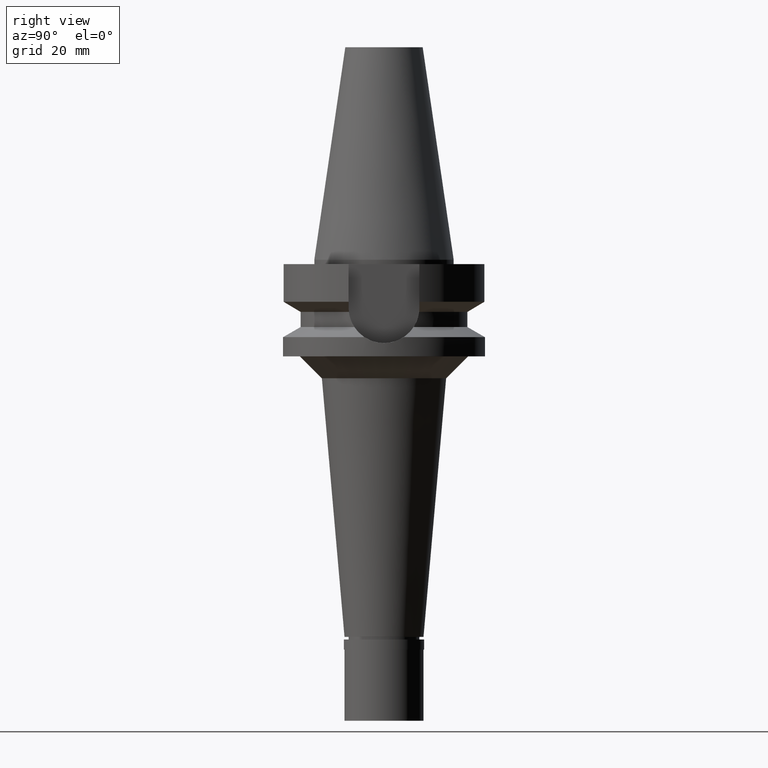
[diagram: clean part render]
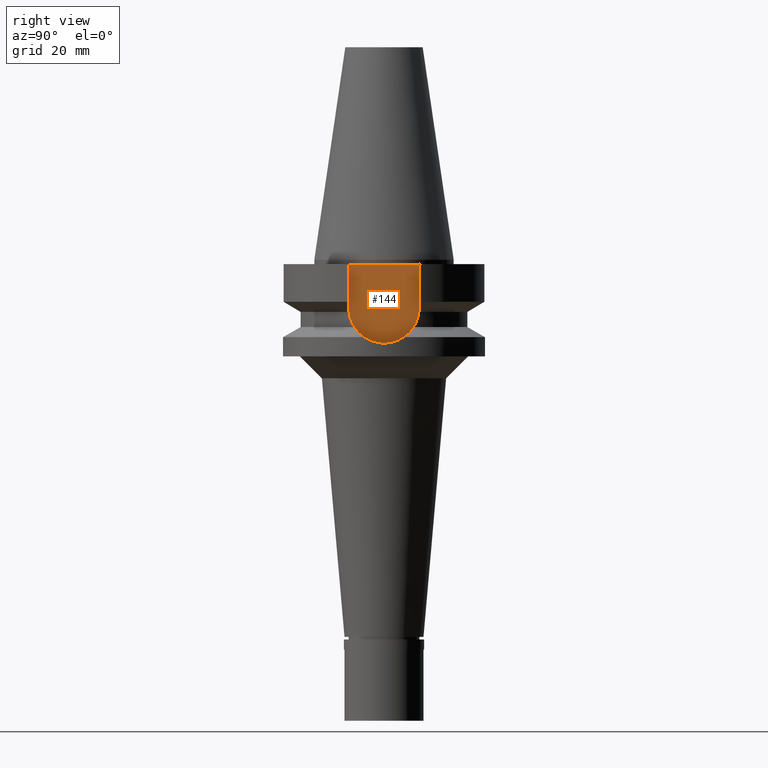
[diagram: same view with one face highlighted and labeled with its STEP entity id]
A machine part, right view. The second image highlights one B-rep face of the part: STEP entity #144.
In plain terms, the highlighted planar face has unit normal (1, 0, 0).
Its self-contained STEP definition (entity closure, byte-faithful):
#8 = ORIENTED_EDGE ( 'NONE', *, *, #2923, .T. ) ;
#108 = CARTESIAN_POINT ( 'NONE',  ( 16.29999999999999716, 8.050000000000000711, -10.94999999999999929 ) ) ;
#144 = ADVANCED_FACE ( 'NONE', ( #845 ), #1822, .T. ) ;
#178 = CARTESIAN_POINT ( 'NONE',  ( 16.29999999999999716, 0.0000000000000000000, 0.0000000000000000000 ) ) ;
#208 = EDGE_LOOP ( 'NONE', ( #2588, #2468, #2175, #8 ) ) ;
#319 = CARTESIAN_POINT ( 'NONE',  ( 16.29999999999999716, 0.0000000000000000000, -10.94999999999999929 ) ) ;
#460 = VERTEX_POINT ( 'NONE', #1300 ) ;
#539 = EDGE_CURVE ( 'NONE', #2462, #1057, #601, .T. ) ;
#601 = CIRCLE ( 'NONE', #1936, 8.050000000000000711 ) ;
#640 = VECTOR ( 'NONE', #1520, 1000.000000000000000 ) ;
#672 = LINE ( 'NONE', #685, #692 ) ;
#685 = CARTESIAN_POINT ( 'NONE',  ( 16.29999999999999716, 8.050000000000000711, -1.000000000000000000 ) ) ;
#692 = VECTOR ( 'NONE', #1572, 1000.000000000000000 ) ;
#845 = FACE_OUTER_BOUND ( 'NONE', #208, .T. ) ;
#948 = EDGE_CURVE ( 'NONE', #1057, #460, #2268, .T. ) ;
#1057 = VERTEX_POINT ( 'NONE', #2776 ) ;
#1146 = LINE ( 'NONE', #2343, #1996 ) ;
#1189 = DIRECTION ( 'NONE',  ( 0.0000000000000000000, -1.000000000000000000, 0.0000000000000000000 ) ) ;
#1300 = CARTESIAN_POINT ( 'NONE',  ( 16.29999999999999716, -8.050000000000000711, -1.000000000000000000 ) ) ;
#1301 = DIRECTION ( 'NONE',  ( -1.000000000000000000, 0.0000000000000000000, 0.0000000000000000000 ) ) ;
#1306 = VERTEX_POINT ( 'NONE', #1441 ) ;
#1393 = EDGE_CURVE ( 'NONE', #1306, #2462, #672, .T. ) ;
#1441 = CARTESIAN_POINT ( 'NONE',  ( 16.29999999999999716, 8.050000000000000711, -1.000000000000000000 ) ) ;
#1520 = DIRECTION ( 'NONE',  ( 0.0000000000000000000, 0.0000000000000000000, 1.000000000000000000 ) ) ;
#1556 = CARTESIAN_POINT ( 'NONE',  ( 16.29999999999999716, -8.050000000000000711, -10.94999999999999929 ) ) ;
#1572 = DIRECTION ( 'NONE',  ( 0.0000000000000000000, 0.0000000000000000000, -1.000000000000000000 ) ) ;
#1755 = DIRECTION ( 'NONE',  ( 1.000000000000000000, 0.0000000000000000000, 0.0000000000000000000 ) ) ;
#1790 = AXIS2_PLACEMENT_3D ( 'NONE', #178, #1755, #2680 ) ;
#1822 = PLANE ( 'NONE',  #1790 ) ;
#1936 = AXIS2_PLACEMENT_3D ( 'NONE', #319, #1301, #2234 ) ;
#1996 = VECTOR ( 'NONE', #1189, 1000.000000000000000 ) ;
#2175 = ORIENTED_EDGE ( 'NONE', *, *, #1393, .F. ) ;
#2234 = DIRECTION ( 'NONE',  ( 0.0000000000000000000, 0.0000000000000000000, -1.000000000000000000 ) ) ;
#2268 = LINE ( 'NONE', #1556, #640 ) ;
#2343 = CARTESIAN_POINT ( 'NONE',  ( 16.29999999999999716, 8.050000000000000711, -1.000000000000000000 ) ) ;
#2462 = VERTEX_POINT ( 'NONE', #108 ) ;
#2468 = ORIENTED_EDGE ( 'NONE', *, *, #539, .F. ) ;
#2588 = ORIENTED_EDGE ( 'NONE', *, *, #948, .F. ) ;
#2680 = DIRECTION ( 'NONE',  ( 0.0000000000000000000, 1.000000000000000000, 0.0000000000000000000 ) ) ;
#2776 = CARTESIAN_POINT ( 'NONE',  ( 16.29999999999999716, -8.050000000000000711, -10.94999999999999929 ) ) ;
#2923 = EDGE_CURVE ( 'NONE', #1306, #460, #1146, .T. ) ;